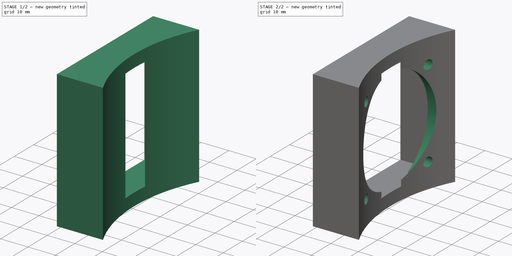
[diagram: build sequence overview — one tinted view per stage of 2, left to right]
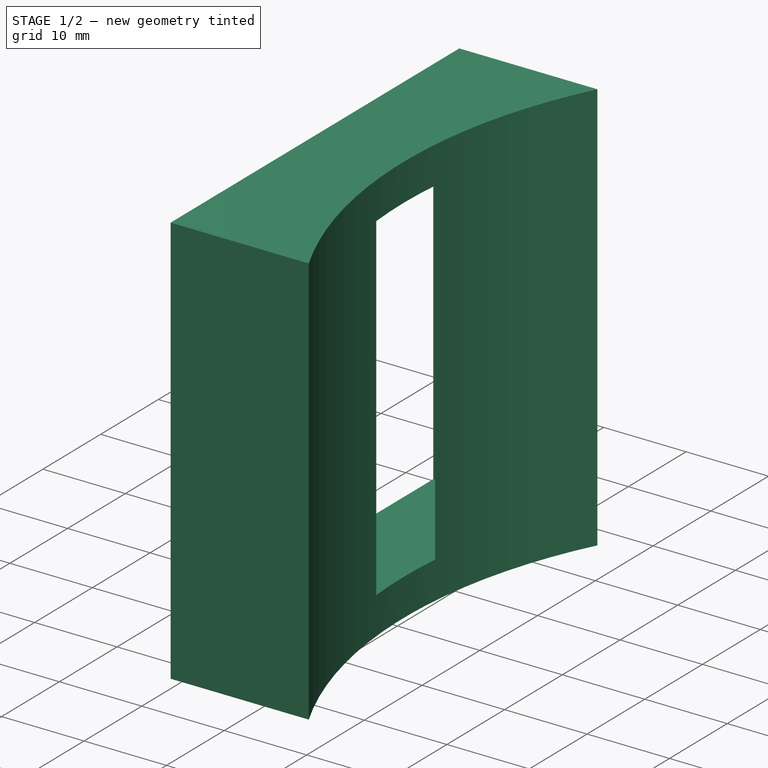
[diagram: stage 1 of 2 — iso view after this stage's code; geometry added in this stage tinted green]
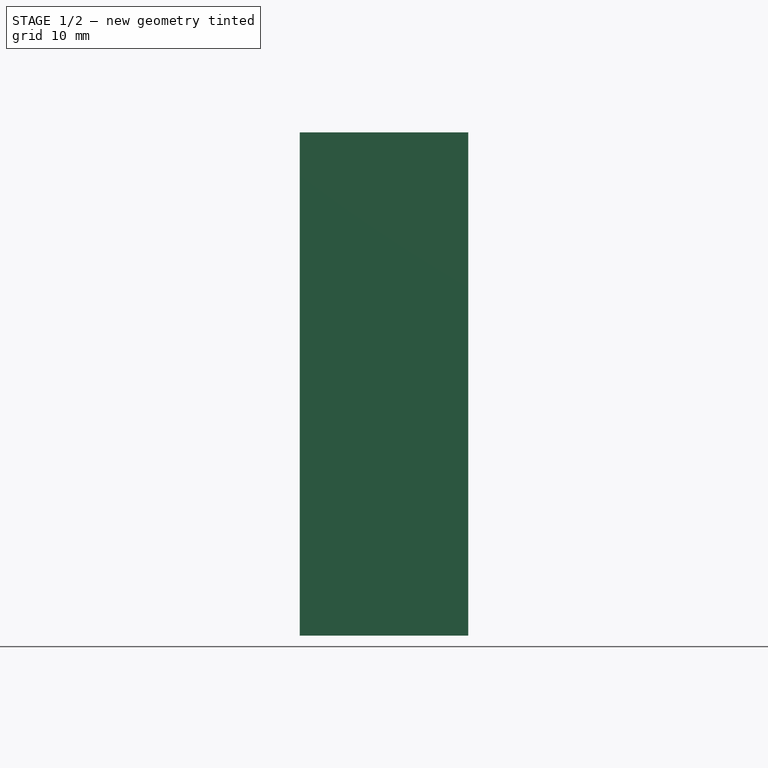
[diagram: stage 1 of 2 — front view after this stage's code; geometry added in this stage tinted green]
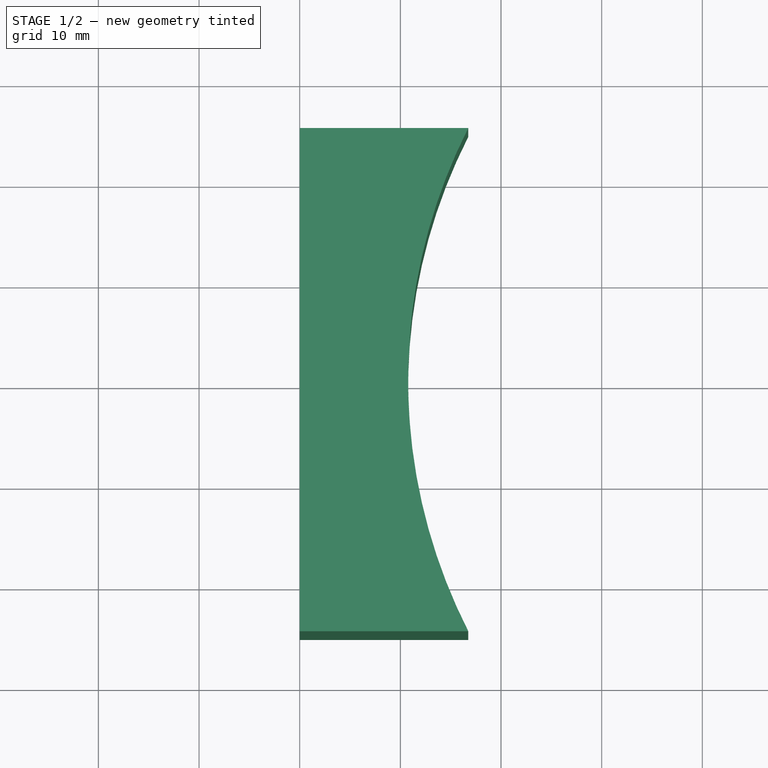
[diagram: stage 1 of 2 — top view after this stage's code; geometry added in this stage tinted green]
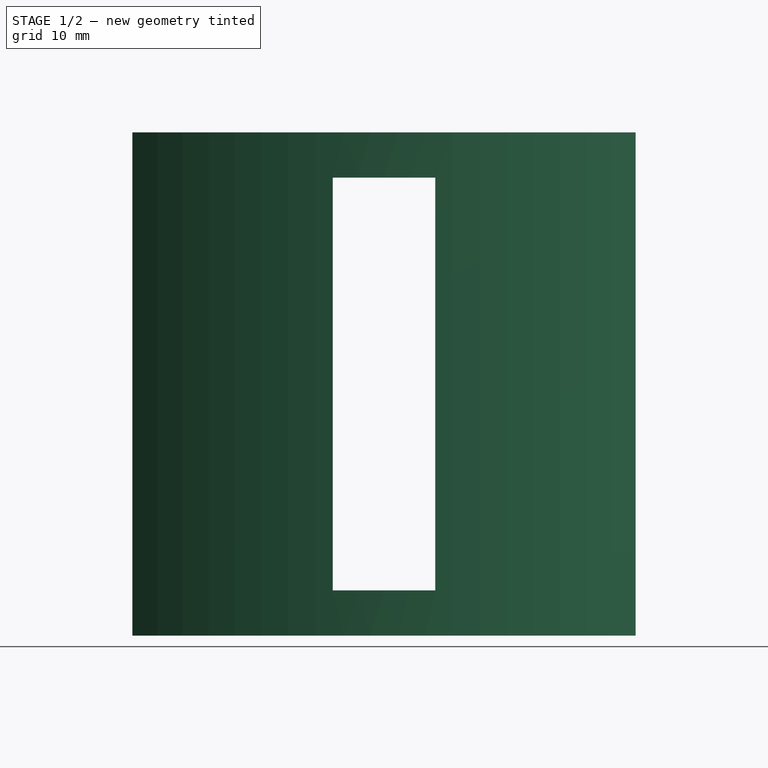
[diagram: stage 1 of 2 — right view after this stage's code; geometry added in this stage tinted green]
FCSTD DOCUMENT  (FreeCAD 0.19R24276 (Git))
Label: Art4BodyFan
License: All rights reserved
LicenseURL: http://en.wikipedia.org/wiki/All_rights_reserved
objects: Sketcher::SketchObject×3, PartDesign::Pocket×2, Spreadsheet::Sheet×1, PartDesign::Pad×1, PartDesign::CoordinateSystem×1, PartDesign::Body×1
note: 11 computed .brp shape members not serialized (recipe doc carries the construction recipe); baked Part::Feature solids carry a one-line shape summary decoded from their .brp

FEATURE [Spreadsheet::Sheet] Spreadsheet
  cells = A2=M3BoltBodyRadius; B2(M3BoltBodyRadius)=1.7; A3=M3BoltHeadRadius; B3(M3BoltHeadRadius)=2.95; A4=M3NutCircumradius; B4(M3NutCircumradius)=3.35; A5=M3NutThickness; B5(M3NutThickness)=3; A6=Bearing655ZZBodyRadius; B6(Bearing655ZZBodyRadius)=8.199999999999999; A7=MagnetRadius; B7(MagnetRadius)=4.2; A8=MagnetThickness; B8(MagnetThickness)=1.1; A9=M2BoltBodyRadius; B9(M2BoltBodyRadius)=1.2; A10=M2BoltHeadRadius; B10(M2BoltHeadRadius)=2.1
FEATURE [Sketcher::SketchObject] Sketch
  FullyConstrained = true
  MapMode = 5
  Support = -> [XY_Plane]
  sketch-geometry (4):
    g0: LineSegment StartX=16.75 StartY=25 StartZ=0 EndX=0 EndY=25 EndZ=0
    g1: LineSegment StartX=0 StartY=25 StartZ=0 EndX=0 EndY=-25 EndZ=0
    g2: LineSegment StartX=0 StartY=-25 StartZ=0 EndX=16.75 EndY=-25 EndZ=0
    g3: ArcOfCircle CenterX=65.9642 CenterY=5e-16 CenterZ=0 NormalX=0 NormalY=0 NormalZ=1 AngleXU=0 Radius=55.2 StartAngle=2.67158 EndAngle=3.61161
  constraints (12):
    c: PointOnObject(g0,g-2)
    c: Coincident(g0,g1)
    c: PointOnObject(g1,g-2)
    c: Coincident(g1,g2)
    c: Horizontal(g2)
    c: Horizontal(g0)
    c: Coincident(g3,g0)
    c: Coincident(g3,g2)
    c: Symmetric(g2,g0,g-1)
    c: Radius(g3) = 55.2
    c: DistanceX(g2,g2) = 16.75
    c: DistanceY(g1,g1) = 50
FEATURE [PartDesign::Pad] Pad
  Direction = (1,1,1)
  Length = 50
  Length2 = 100
  Profile = -> Sketch
  Refine = true
  Type = 0
FEATURE [Sketcher::SketchObject] Sketch001
  FullyConstrained = true
  MapMode = 5
  Placement = pos=(0,0,0) rot=(0.57735,-0.57735,-0.57735;2.0944rad)
  Support = -> [Pad]
  sketch-geometry (4):
    g0: LineSegment StartX=-20.5 StartY=45.5 StartZ=0 EndX=20.5 EndY=45.5 EndZ=0
    g1: LineSegment StartX=20.5 StartY=45.5 StartZ=0 EndX=20.5 EndY=4.5 EndZ=0
    g2: LineSegment StartX=20.5 StartY=4.5 StartZ=0 EndX=-20.5 EndY=4.5 EndZ=0
    g3: LineSegment StartX=-20.5 StartY=4.5 StartZ=0 EndX=-20.5 EndY=45.5 EndZ=0
  constraints (11):
    c: Coincident(g0,g1)
    c: Coincident(g1,g2)
    c: Coincident(g2,g3)
    c: Coincident(g3,g0)
    c: Horizontal(g0)
    c: Vertical(g1)
    c: Vertical(g3)
    c: Equal(g1,g2)
    c: DistanceX(g2,g2) = 41
    c: Symmetric(g1,g2,g-2)
    c: DistanceY(g-1,g2) = 4.5
FEATURE [PartDesign::Pocket] Pocket
  BaseFeature = -> Pad
  Length = 11
  Length2 = 100
  Profile = -> Sketch001
  Refine = true
  Type = 0
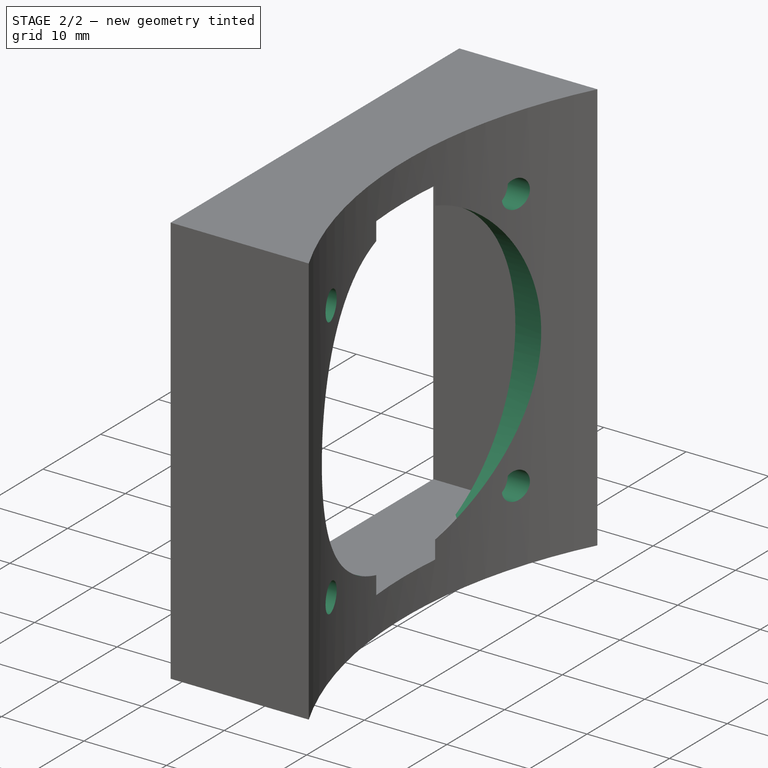
[diagram: stage 2 of 2 — iso view after this stage's code; geometry added in this stage tinted green]
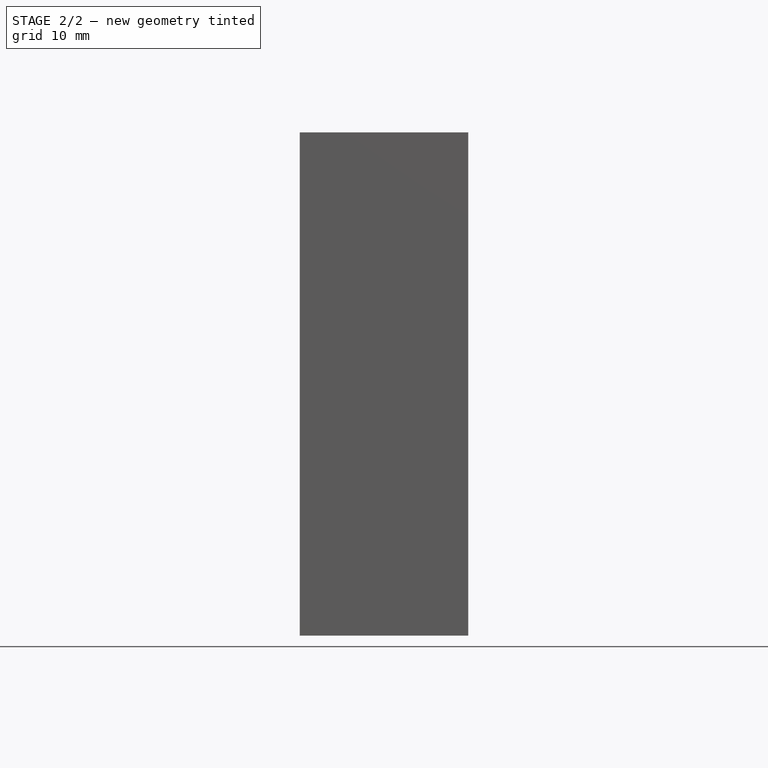
[diagram: stage 2 of 2 — front view after this stage's code; geometry added in this stage tinted green]
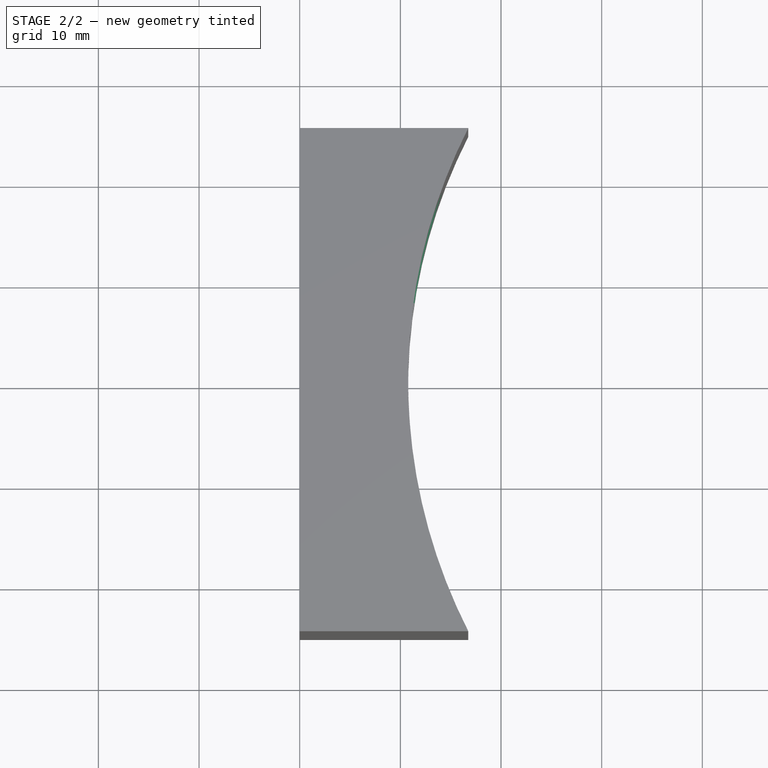
[diagram: stage 2 of 2 — top view after this stage's code; geometry added in this stage tinted green]
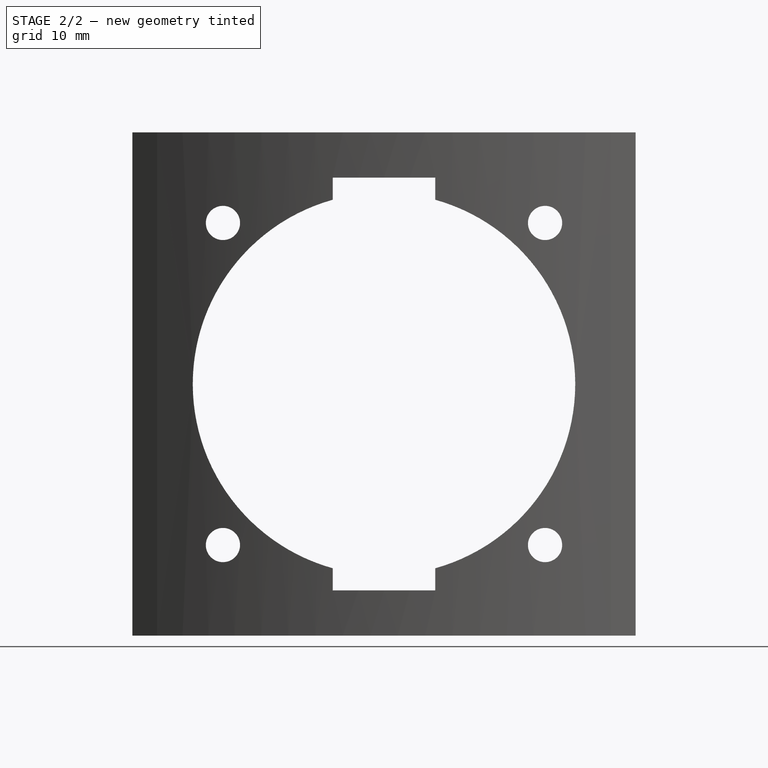
[diagram: stage 2 of 2 — right view after this stage's code; geometry added in this stage tinted green]
FEATURE [Sketcher::SketchObject] Sketch002
  FullyConstrained = true
  MapMode = 5
  Placement = pos=(11,0,0) rot=(0.57735,-0.57735,-0.57735;2.0944rad)
  Support = -> [Pocket]
  expr: Constraints[18] = Spreadsheet.M3BoltBodyRadius
  sketch-geometry (10):
    g0: LineSegment StartX=-16 StartY=41 StartZ=0 EndX=16 EndY=41 EndZ=0
    g1: LineSegment StartX=16 StartY=41 StartZ=0 EndX=16 EndY=9 EndZ=0
    g2: LineSegment StartX=16 StartY=9 StartZ=0 EndX=-16 EndY=9 EndZ=0
    g3: LineSegment StartX=-16 StartY=9 StartZ=0 EndX=-16 EndY=41 EndZ=0
    g4: Circle CenterX=-16 CenterY=41 CenterZ=0 NormalX=0 NormalY=0 NormalZ=1 AngleXU=0 Radius=1.7
    g5: Circle CenterX=16 CenterY=41 CenterZ=0 NormalX=0 NormalY=0 NormalZ=1 AngleXU=0 Radius=1.7
    g6: Circle CenterX=16 CenterY=9 CenterZ=0 NormalX=0 NormalY=0 NormalZ=1 AngleXU=0 Radius=1.7
    g7: Circle CenterX=-16 CenterY=9 CenterZ=0 NormalX=0 NormalY=0 NormalZ=1 AngleXU=0 Radius=1.7
    g8: Circle CenterX=0 CenterY=25 CenterZ=0 NormalX=0 NormalY=0 NormalZ=1 AngleXU=0 Radius=19
    g9: LineSegment StartX=16 StartY=41 StartZ=0 EndX=-16 EndY=9 EndZ=0
  constraints (24):
    c: Coincident(g0,g1)
    c: Coincident(g1,g2)
    c: Coincident(g2,g3)
    c: Coincident(g3,g0)
    c: Horizontal(g0)
    c: Vertical(g1)
    c: Vertical(g3)
    c: Symmetric(g1,g2,g-2)
    c: Equal(g3,g2)
    c: DistanceX(g2,g2) = 32
    c: DistanceY(g-1,g2) = 9
    c: Coincident(g4,g0)
    c: Coincident(g5,g0)
    c: Coincident(g6,g1)
    c: Coincident(g7,g2)
    c: Equal(g7,g6)
    c: Equal(g6,g5)
    c: Equal(g5,g4)
    c: Radius(g4) = 1.7
    c: PointOnObject(g8,g-2)
    c: Radius(g8) = 19
    c: Coincident(g9,g5)
    c: Coincident(g9,g7)
    c: PointOnObject(g8,g9)
FEATURE [PartDesign::Pocket] Pocket001
  BaseFeature = -> Pocket
  Length = 5
  Length2 = 100
  Profile = -> Sketch002
  Refine = true
  Type = 1
FEATURE [PartDesign::CoordinateSystem] LCS_Art4BodyFan
  AttacherType = Attacher::AttachEngine3D
  MapMode = 45
  Placement = pos=(11,-8e-15,25) rot=(0.57735,0.57735,0.57735;2.0944rad)
  Support = -> [Pocket001]
FEATURE [PartDesign::Body] Body  label="Art4BodyFan"
  Group = -> [Sketch,Pad,Sketch001,Pocket,Sketch002,Pocket001,LCS_Art4BodyFan]
  Origin = -> Origin
  Tip = -> Pocket001
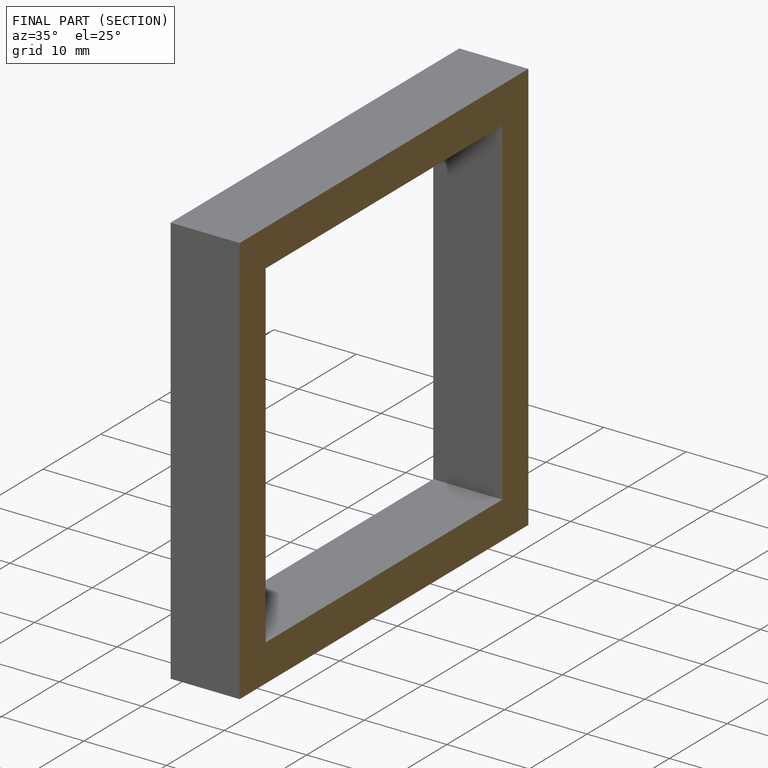
[diagram: finished part — half-section view (interior)]
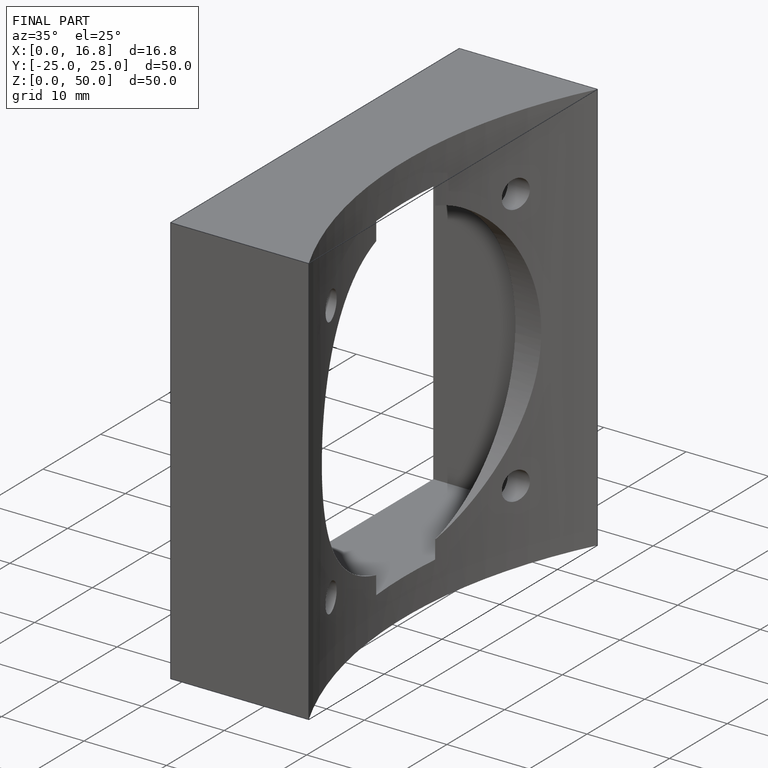
[diagram: finished part — iso view with bounding-box wireframe]
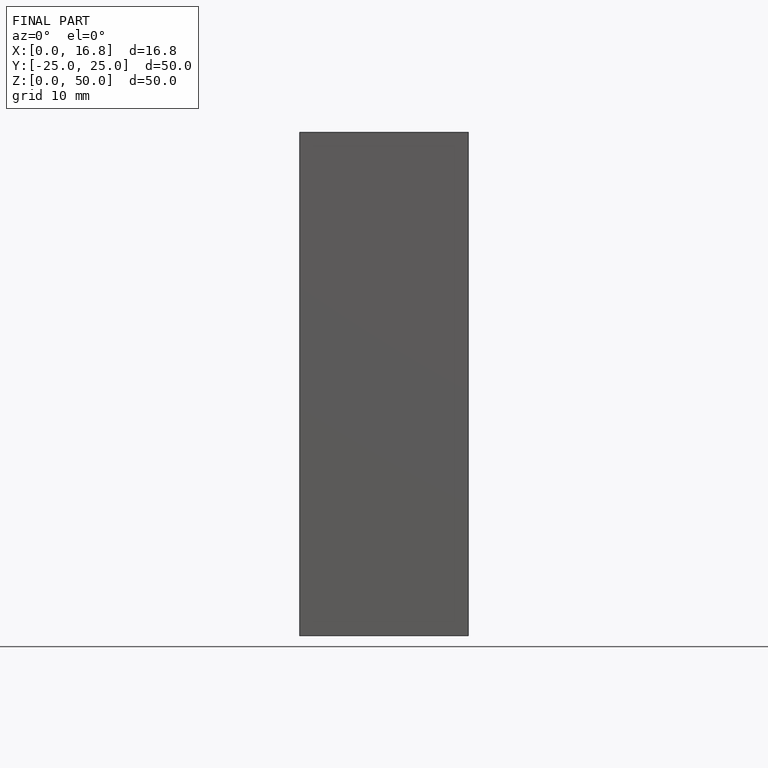
[diagram: finished part — front view with bounding-box wireframe]
